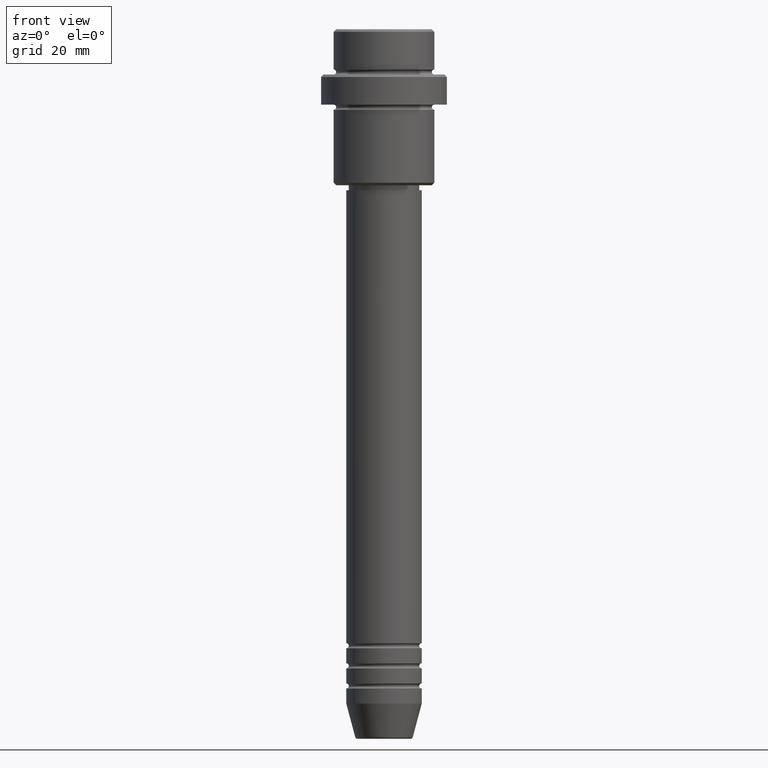
[diagram: clean part render]
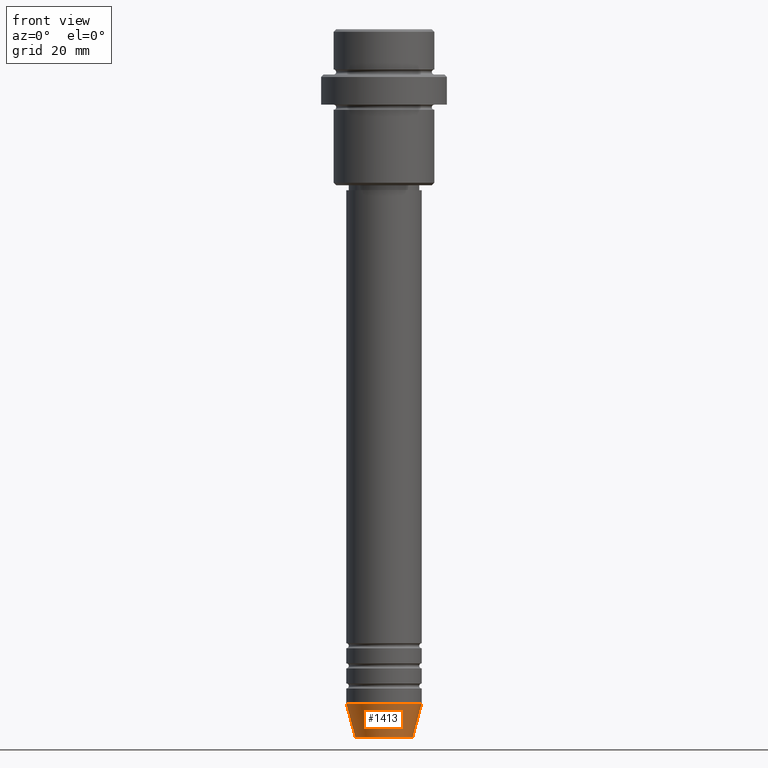
[diagram: same view with one face highlighted and labeled with its STEP entity id]
A machine part, front view. The second image highlights one B-rep face of the part: STEP entity #1413.
In plain terms, the highlighted conical surface has half-angle 15 deg.
Its self-contained STEP definition (entity closure, byte-faithful):
#40 = VERTEX_POINT ( 'NONE', #1398 ) ;
#66 = AXIS2_PLACEMENT_3D ( 'NONE', #859, #558, #990 ) ;
#80 = ORIENTED_EDGE ( 'NONE', *, *, #473, .F. ) ;
#123 = ORIENTED_EDGE ( 'NONE', *, *, #500, .F. ) ;
#175 = CARTESIAN_POINT ( 'NONE',  ( 5.723655072137191269, 0.000000000000000000, -140.6294095225512706 ) ) ;
#199 = CARTESIAN_POINT ( 'NONE',  ( 0.000000000000000000, 0.000000000000000000, -134.0000000000000000 ) ) ;
#206 = CARTESIAN_POINT ( 'NONE',  ( -7.500000000000000000, 9.184850993605147944E-16, -134.0000000000000000 ) ) ;
#214 = VERTEX_POINT ( 'NONE', #1084 ) ;
#254 = DIRECTION ( 'NONE',  ( 0.2588190451025213501, 0.000000000000000000, 0.9659258262890680902 ) ) ;
#270 = AXIS2_PLACEMENT_3D ( 'NONE', #199, #514, #949 ) ;
#279 = ORIENTED_EDGE ( 'NONE', *, *, #785, .T. ) ;
#361 = CIRCLE ( 'NONE', #270, 7.500000000000000000 ) ;
#396 = CARTESIAN_POINT ( 'NONE',  ( 0.000000000000000000, 0.000000000000000000, -134.0000000000000000 ) ) ;
#409 = DIRECTION ( 'NONE',  ( -0.2588190451025213501, 3.169619151431772337E-17, 0.9659258262890680902 ) ) ;
#416 = CONICAL_SURFACE ( 'NONE', #1242, 7.500000000000000000, 0.2617993877991500740 ) ;
#462 = VERTEX_POINT ( 'NONE', #175 ) ;
#473 = EDGE_CURVE ( 'NONE', #1011, #214, #731, .T. ) ;
#500 = EDGE_CURVE ( 'NONE', #214, #40, #361, .T. ) ;
#514 = DIRECTION ( 'NONE',  ( -0.000000000000000000, -0.000000000000000000, 1.000000000000000000 ) ) ;
#558 = DIRECTION ( 'NONE',  ( -0.000000000000000000, -0.000000000000000000, 1.000000000000000000 ) ) ;
#613 = VECTOR ( 'NONE', #254, 1000.000000000000000 ) ;
#676 = EDGE_LOOP ( 'NONE', ( #80, #948, #279, #123 ) ) ;
#689 = EDGE_CURVE ( 'NONE', #1011, #462, #1300, .T. ) ;
#708 = DIRECTION ( 'NONE',  ( -0.000000000000000000, -0.000000000000000000, 1.000000000000000000 ) ) ;
#731 = LINE ( 'NONE', #206, #906 ) ;
#785 = EDGE_CURVE ( 'NONE', #462, #40, #1227, .T. ) ;
#850 = CARTESIAN_POINT ( 'NONE',  ( -5.723655072137191269, 8.097153428560735915E-16, -140.6294095225512706 ) ) ;
#859 = CARTESIAN_POINT ( 'NONE',  ( 0.000000000000000000, 0.000000000000000000, -140.6294095225512706 ) ) ;
#906 = VECTOR ( 'NONE', #409, 1000.000000000000000 ) ;
#948 = ORIENTED_EDGE ( 'NONE', *, *, #689, .T. ) ;
#949 = DIRECTION ( 'NONE',  ( 1.000000000000000000, 0.000000000000000000, 0.000000000000000000 ) ) ;
#990 = DIRECTION ( 'NONE',  ( 1.000000000000000000, 0.000000000000000000, 0.000000000000000000 ) ) ;
#1011 = VERTEX_POINT ( 'NONE', #850 ) ;
#1029 = CARTESIAN_POINT ( 'NONE',  ( 7.500000000000000000, 0.000000000000000000, -134.0000000000000000 ) ) ;
#1058 = FACE_OUTER_BOUND ( 'NONE', #676, .T. ) ;
#1084 = CARTESIAN_POINT ( 'NONE',  ( -7.500000000000000000, 9.184850993605147944E-16, -134.0000000000000000 ) ) ;
#1150 = DIRECTION ( 'NONE',  ( 1.000000000000000000, 0.000000000000000000, 0.000000000000000000 ) ) ;
#1227 = LINE ( 'NONE', #1029, #613 ) ;
#1242 = AXIS2_PLACEMENT_3D ( 'NONE', #396, #708, #1150 ) ;
#1300 = CIRCLE ( 'NONE', #66, 5.723655072137191269 ) ;
#1398 = CARTESIAN_POINT ( 'NONE',  ( 7.500000000000000000, 0.000000000000000000, -134.0000000000000000 ) ) ;
#1413 = ADVANCED_FACE ( 'NONE', ( #1058 ), #416, .T. ) ;